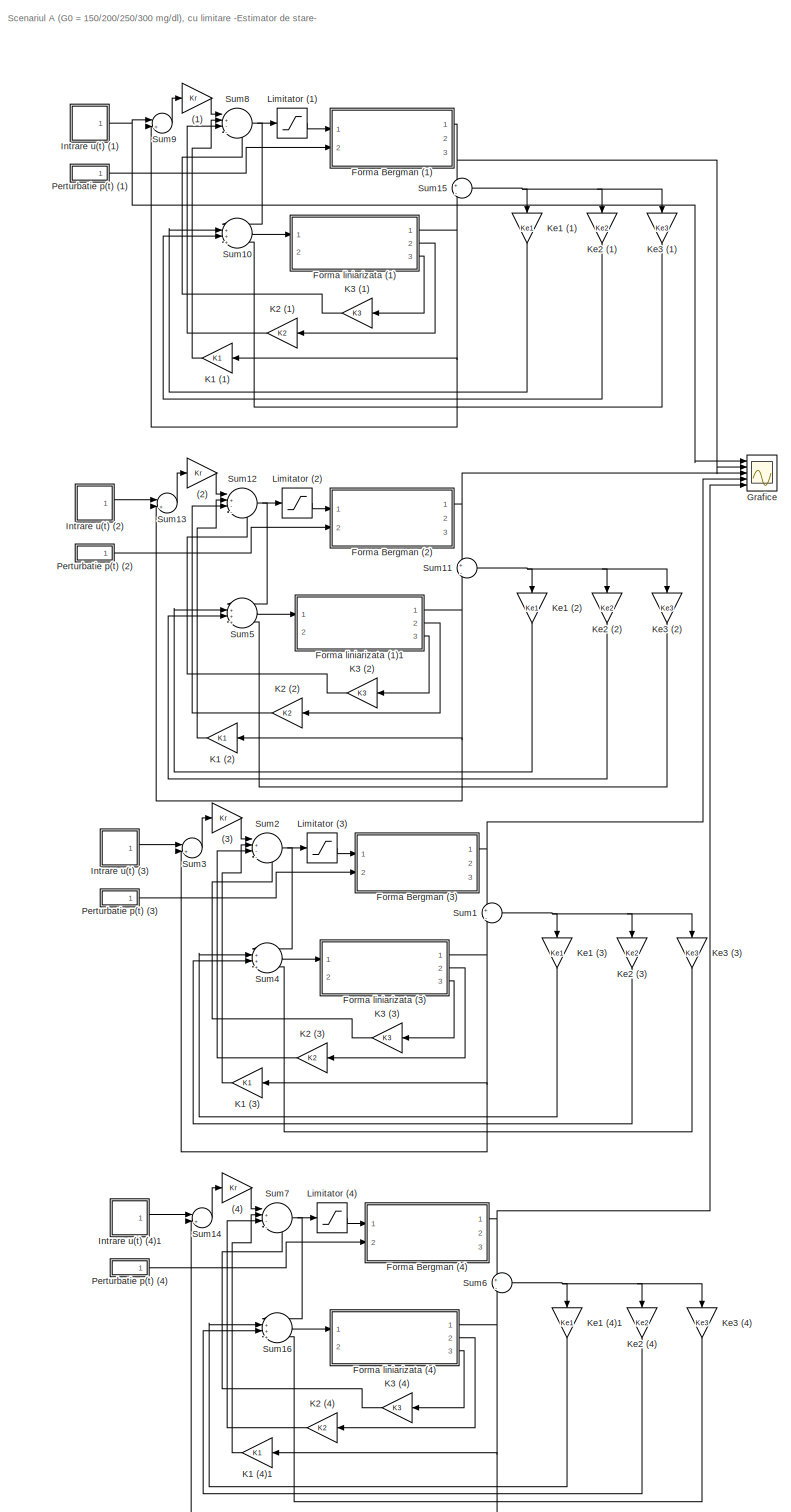
[diagram: root canvas - part 1/1, most of the canvas]
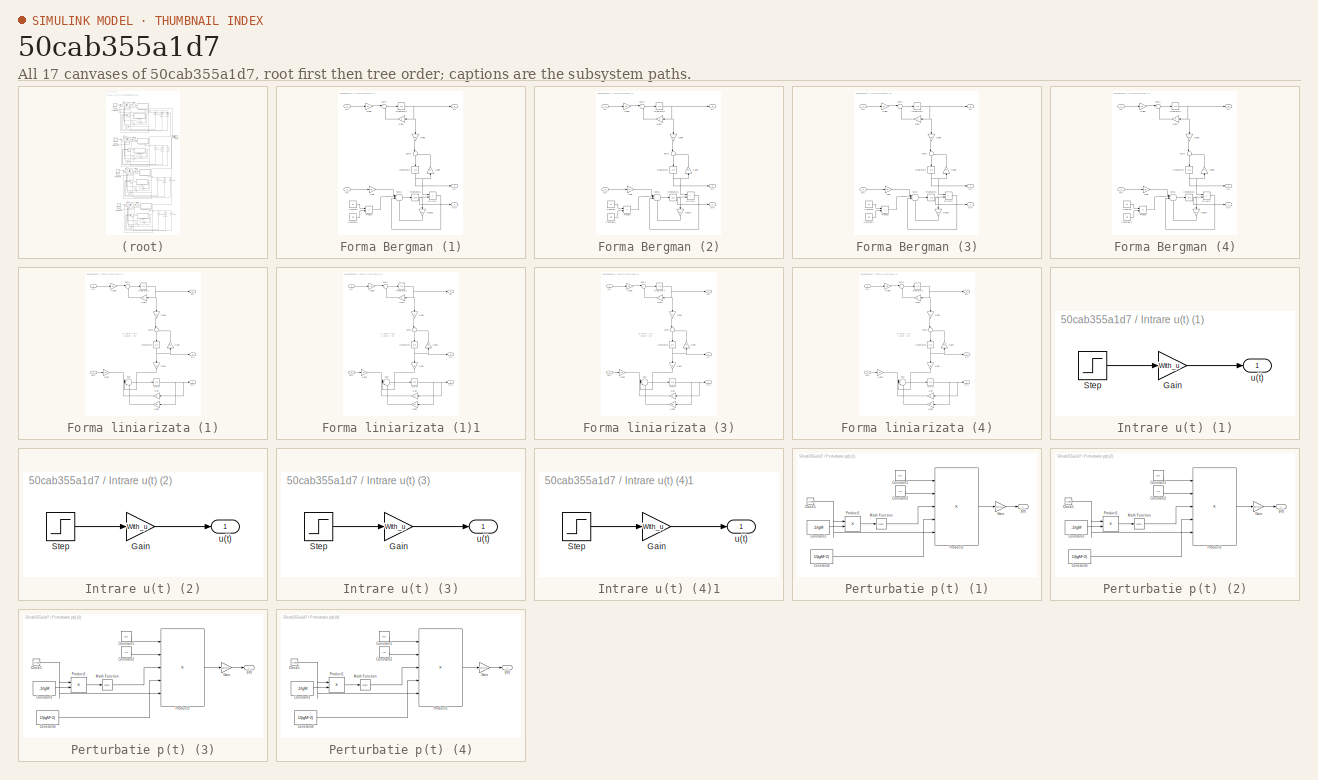
[diagram: thumbnail index - all 17 canvases of the model, root first then tree order]
MODEL slx_50cab355a1d7
KIND model
CONFIG AbsTol = auto
CONFIG EnableMultiTasking = off
CONFIG FixedStep = auto
CONFIG MaxStep = auto
CONFIG MinStep = auto
CONFIG RelTol = 1e-3
CONFIG SampleTimeConstraint = Unconstrained
CONFIG Solver = VariableStepAuto
CONFIG SolverName = VariableStepAuto
CONFIG StartTime = 0.0
CONFIG StopTime = 500
BLOCK [Gain] (1)
  Gain = Kr
BLOCK [Gain] (2)
  Gain = Kr
BLOCK [Gain] (3)
  Gain = Kr
BLOCK [Gain] (4)
  Gain = Kr
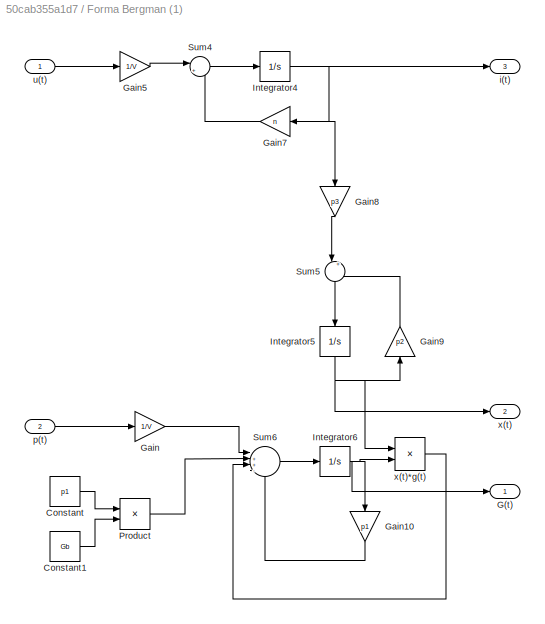
BLOCK [SubSystem] Forma Bergman (1)
  Ports = [2, 3]
BLOCK [Constant] Forma Bergman (1)/Constant
  Value = p1
BLOCK [Constant] Forma Bergman (1)/Constant1
  Value = Gb
BLOCK [Outport] Forma Bergman (1)/G(t)
BLOCK [Gain] Forma Bergman (1)/Gain
  Gain = 1/V
BLOCK [Gain] Forma Bergman (1)/Gain10
  Gain = p1
  NameLocation = left
BLOCK [Gain] Forma Bergman (1)/Gain5
  Gain = 1/V
BLOCK [Gain] Forma Bergman (1)/Gain7
  Gain = n
  NameLocation = top
BLOCK [Gain] Forma Bergman (1)/Gain8
  Gain = p3
  NameLocation = left
BLOCK [Gain] Forma Bergman (1)/Gain9
  Gain = p2
  NameLocation = right
BLOCK [Integrator] Forma Bergman (1)/Integrator4
  Ports = [1, 1]
BLOCK [Integrator] Forma Bergman (1)/Integrator5
  NameLocation = left
  Ports = [1, 1]
BLOCK [Integrator] Forma Bergman (1)/Integrator6
  InitialCondition = G0
  Ports = [1, 1]
BLOCK [Product] Forma Bergman (1)/Product
  Ports = [2, 1]
BLOCK [Sum] Forma Bergman (1)/Sum4
  Inputs = |+-
  Ports = [2, 1]
BLOCK [Sum] Forma Bergman (1)/Sum5
  Inputs = |+-
  NameLocation = left
  Ports = [2, 1]
BLOCK [Sum] Forma Bergman (1)/Sum6
  Inputs = |++--
  Ports = [4, 1]
BLOCK [Outport] Forma Bergman (1)/i(t)
  Port = 3
BLOCK [Inport] Forma Bergman (1)/p(t)
  Port = 2
BLOCK [Inport] Forma Bergman (1)/u(t)
BLOCK [Outport] Forma Bergman (1)/x(t)
  Port = 2
BLOCK [Product] Forma Bergman (1)/x(t)*g(t)
  Ports = [2, 1]
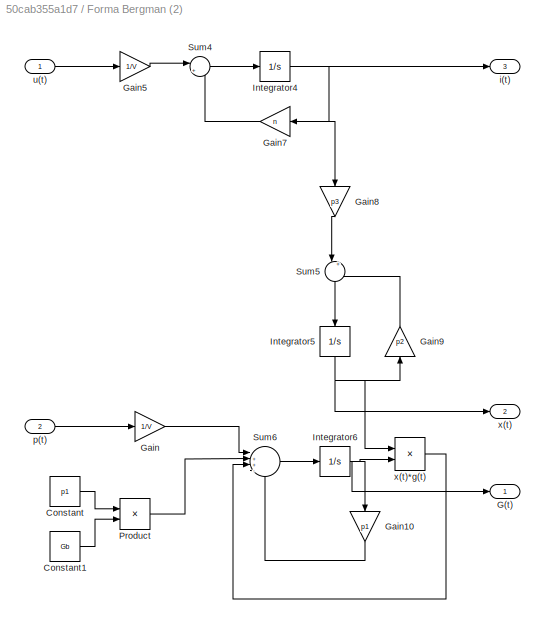
BLOCK [SubSystem] Forma Bergman (2)
  Ports = [2, 3]
BLOCK [Constant] Forma Bergman (2)/Constant
  Value = p1
BLOCK [Constant] Forma Bergman (2)/Constant1
  Value = Gb
BLOCK [Outport] Forma Bergman (2)/G(t)
BLOCK [Gain] Forma Bergman (2)/Gain
  Gain = 1/V
BLOCK [Gain] Forma Bergman (2)/Gain10
  Gain = p1
  NameLocation = left
BLOCK [Gain] Forma Bergman (2)/Gain5
  Gain = 1/V
BLOCK [Gain] Forma Bergman (2)/Gain7
  Gain = n
  NameLocation = top
BLOCK [Gain] Forma Bergman (2)/Gain8
  Gain = p3
  NameLocation = left
BLOCK [Gain] Forma Bergman (2)/Gain9
  Gain = p2
  NameLocation = right
BLOCK [Integrator] Forma Bergman (2)/Integrator4
  Ports = [1, 1]
BLOCK [Integrator] Forma Bergman (2)/Integrator5
  NameLocation = left
  Ports = [1, 1]
BLOCK [Integrator] Forma Bergman (2)/Integrator6
  InitialCondition = G0
  Ports = [1, 1]
BLOCK [Product] Forma Bergman (2)/Product
  Ports = [2, 1]
BLOCK [Sum] Forma Bergman (2)/Sum4
  Inputs = |+-
  Ports = [2, 1]
BLOCK [Sum] Forma Bergman (2)/Sum5
  Inputs = |+-
  NameLocation = left
  Ports = [2, 1]
BLOCK [Sum] Forma Bergman (2)/Sum6
  Inputs = |++--
  Ports = [4, 1]
BLOCK [Outport] Forma Bergman (2)/i(t)
  Port = 3
BLOCK [Inport] Forma Bergman (2)/p(t)
  Port = 2
BLOCK [Inport] Forma Bergman (2)/u(t)
BLOCK [Outport] Forma Bergman (2)/x(t)
  Port = 2
BLOCK [Product] Forma Bergman (2)/x(t)*g(t)
  Ports = [2, 1]
BLOCK [SubSystem] Forma Bergman (3)
  Ports = [2, 3]
BLOCK [Constant] Forma Bergman (3)/Constant
  Value = p1
BLOCK [Constant] Forma Bergman (3)/Constant1
  Value = Gb
BLOCK [Outport] Forma Bergman (3)/G(t)
BLOCK [Gain] Forma Bergman (3)/Gain
  Gain = 1/V
BLOCK [Gain] Forma Bergman (3)/Gain10
  Gain = p1
  NameLocation = left
BLOCK [Gain] Forma Bergman (3)/Gain5
  Gain = 1/V
BLOCK [Gain] Forma Bergman (3)/Gain7
  Gain = n
  NameLocation = top
BLOCK [Gain] Forma Bergman (3)/Gain8
  Gain = p3
  NameLocation = left
BLOCK [Gain] Forma Bergman (3)/Gain9
  Gain = p2
  NameLocation = right
BLOCK [Integrator] Forma Bergman (3)/Integrator4
  Ports = [1, 1]
BLOCK [Integrator] Forma Bergman (3)/Integrator5
  NameLocation = left
  Ports = [1, 1]
BLOCK [Integrator] Forma Bergman (3)/Integrator6
  InitialCondition = G0
  Ports = [1, 1]
BLOCK [Product] Forma Bergman (3)/Product
  Ports = [2, 1]
BLOCK [Sum] Forma Bergman (3)/Sum4
  Inputs = |+-
  Ports = [2, 1]
BLOCK [Sum] Forma Bergman (3)/Sum5
  Inputs = |+-
  NameLocation = left
  Ports = [2, 1]
BLOCK [Sum] Forma Bergman (3)/Sum6
  Inputs = |++--
  Ports = [4, 1]
BLOCK [Outport] Forma Bergman (3)/i(t)
  Port = 3
BLOCK [Inport] Forma Bergman (3)/p(t)
  Port = 2
BLOCK [Inport] Forma Bergman (3)/u(t)
BLOCK [Outport] Forma Bergman (3)/x(t)
  Port = 2
BLOCK [Product] Forma Bergman (3)/x(t)*g(t)
  Ports = [2, 1]
BLOCK [SubSystem] Forma Bergman (4)
  Ports = [2, 3]
BLOCK [Constant] Forma Bergman (4)/Constant
  Value = p1
BLOCK [Constant] Forma Bergman (4)/Constant1
  Value = Gb
BLOCK [Outport] Forma Bergman (4)/G(t)
BLOCK [Gain] Forma Bergman (4)/Gain
  Gain = 1/V
BLOCK [Gain] Forma Bergman (4)/Gain10
  Gain = p1
  NameLocation = left
BLOCK [Gain] Forma Bergman (4)/Gain5
  Gain = 1/V
BLOCK [Gain] Forma Bergman (4)/Gain7
  Gain = n
  NameLocation = top
BLOCK [Gain] Forma Bergman (4)/Gain8
  Gain = p3
  NameLocation = left
BLOCK [Gain] Forma Bergman (4)/Gain9
  Gain = p2
  NameLocation = right
BLOCK [Integrator] Forma Bergman (4)/Integrator4
  Ports = [1, 1]
BLOCK [Integrator] Forma Bergman (4)/Integrator5
  NameLocation = left
  Ports = [1, 1]
BLOCK [Integrator] Forma Bergman (4)/Integrator6
  InitialCondition = G0
  Ports = [1, 1]
BLOCK [Product] Forma Bergman (4)/Product
  Ports = [2, 1]
BLOCK [Sum] Forma Bergman (4)/Sum4
  Inputs = |+-
  Ports = [2, 1]
BLOCK [Sum] Forma Bergman (4)/Sum5
  Inputs = |+-
  NameLocation = left
  Ports = [2, 1]
BLOCK [Sum] Forma Bergman (4)/Sum6
  Inputs = |++--
  Ports = [4, 1]
BLOCK [Outport] Forma Bergman (4)/i(t)
  Port = 3
BLOCK [Inport] Forma Bergman (4)/p(t)
  Port = 2
BLOCK [Inport] Forma Bergman (4)/u(t)
BLOCK [Outport] Forma Bergman (4)/x(t)
  Port = 2
BLOCK [Product] Forma Bergman (4)/x(t)*g(t)
  Ports = [2, 1]
BLOCK [SubSystem] Forma liniarizata (1)
  Ports = [2, 3]
BLOCK [Outport] Forma liniarizata (1)/G(t)
BLOCK [Gain] Forma liniarizata (1)/Gain
  Gain = p1
  NameLocation = top
BLOCK [Gain] Forma liniarizata (1)/Gain1
  Gain = Gb
  NameLocation = left
BLOCK [Gain] Forma liniarizata (1)/Gain2
  Gain = Xb
  NameLocation = top
BLOCK [Gain] Forma liniarizata (1)/Gain3
  Gain = 1/V
BLOCK [Gain] Forma liniarizata (1)/Gain5
  Gain = 1/V
BLOCK [Gain] Forma liniarizata (1)/Gain7
  Gain = n
  NameLocation = top
BLOCK [Gain] Forma liniarizata (1)/Gain8
  Gain = p3
  NameLocation = left
BLOCK [Gain] Forma liniarizata (1)/Gain9
  Gain = p2
  NameLocation = right
BLOCK [Integrator] Forma liniarizata (1)/Gb!=0
  InitialCondition = G0
  Ports = [1, 1]
BLOCK [Integrator] Forma liniarizata (1)/Integrator4
  Ports = [1, 1]
BLOCK [Integrator] Forma liniarizata (1)/Integrator5
  NameLocation = left
  Ports = [1, 1]
BLOCK [Sum] Forma liniarizata (1)/Sum
  Inputs = |+---
  Ports = [4, 1]
BLOCK [Sum] Forma liniarizata (1)/Sum4
  Inputs = |+-
  Ports = [2, 1]
BLOCK [Sum] Forma liniarizata (1)/Sum5
  Inputs = |+-
  NameLocation = left
  Ports = [2, 1]
BLOCK [Outport] Forma liniarizata (1)/i(t)
  Port = 3
BLOCK [Inport] Forma liniarizata (1)/p(t)
  Port = 2
BLOCK [Inport] Forma liniarizata (1)/u(t)
BLOCK [Outport] Forma liniarizata (1)/x(t)
  Port = 2
BLOCK [SubSystem] Forma liniarizata (1)1
  Ports = [2, 3]
BLOCK [Outport] Forma liniarizata (1)1/G(t)
BLOCK [Gain] Forma liniarizata (1)1/Gain
  Gain = p1
  NameLocation = top
BLOCK [Gain] Forma liniarizata (1)1/Gain1
  Gain = Gb
  NameLocation = left
BLOCK [Gain] Forma liniarizata (1)1/Gain2
  Gain = Xb
  NameLocation = top
BLOCK [Gain] Forma liniarizata (1)1/Gain3
  Gain = 1/V
BLOCK [Gain] Forma liniarizata (1)1/Gain5
  Gain = 1/V
BLOCK [Gain] Forma liniarizata (1)1/Gain7
  Gain = n
  NameLocation = top
BLOCK [Gain] Forma liniarizata (1)1/Gain8
  Gain = p3
  NameLocation = left
BLOCK [Gain] Forma liniarizata (1)1/Gain9
  Gain = p2
  NameLocation = right
BLOCK [Integrator] Forma liniarizata (1)1/Gb!=0
  InitialCondition = G0
  Ports = [1, 1]
BLOCK [Integrator] Forma liniarizata (1)1/Integrator4
  Ports = [1, 1]
BLOCK [Integrator] Forma liniarizata (1)1/Integrator5
  NameLocation = left
  Ports = [1, 1]
BLOCK [Sum] Forma liniarizata (1)1/Sum
  Inputs = |+---
  Ports = [4, 1]
BLOCK [Sum] Forma liniarizata (1)1/Sum4
  Inputs = |+-
  Ports = [2, 1]
BLOCK [Sum] Forma liniarizata (1)1/Sum5
  Inputs = |+-
  NameLocation = left
  Ports = [2, 1]
BLOCK [Outport] Forma liniarizata (1)1/i(t)
  Port = 3
BLOCK [Inport] Forma liniarizata (1)1/p(t)
  Port = 2
BLOCK [Inport] Forma liniarizata (1)1/u(t)
BLOCK [Outport] Forma liniarizata (1)1/x(t)
  Port = 2
BLOCK [SubSystem] Forma liniarizata (3)
  Ports = [2, 3]
BLOCK [Outport] Forma liniarizata (3)/G(t)
BLOCK [Gain] Forma liniarizata (3)/Gain
  Gain = p1
  NameLocation = top
BLOCK [Gain] Forma liniarizata (3)/Gain1
  Gain = Gb
  NameLocation = left
BLOCK [Gain] Forma liniarizata (3)/Gain2
  Gain = Xb
  NameLocation = top
BLOCK [Gain] Forma liniarizata (3)/Gain3
  Gain = 1/V
BLOCK [Gain] Forma liniarizata (3)/Gain5
  Gain = 1/V
BLOCK [Gain] Forma liniarizata (3)/Gain7
  Gain = n
  NameLocation = top
BLOCK [Gain] Forma liniarizata (3)/Gain8
  Gain = p3
  NameLocation = left
BLOCK [Gain] Forma liniarizata (3)/Gain9
  Gain = p2
  NameLocation = right
BLOCK [Integrator] Forma liniarizata (3)/Gb!=0
  InitialCondition = G0
  Ports = [1, 1]
BLOCK [Integrator] Forma liniarizata (3)/Integrator4
  Ports = [1, 1]
BLOCK [Integrator] Forma liniarizata (3)/Integrator5
  NameLocation = left
  Ports = [1, 1]
BLOCK [Sum] Forma liniarizata (3)/Sum
  Inputs = |+---
  Ports = [4, 1]
BLOCK [Sum] Forma liniarizata (3)/Sum4
  Inputs = |+-
  Ports = [2, 1]
BLOCK [Sum] Forma liniarizata (3)/Sum5
  Inputs = |+-
  NameLocation = left
  Ports = [2, 1]
BLOCK [Outport] Forma liniarizata (3)/i(t)
  Port = 3
BLOCK [Inport] Forma liniarizata (3)/p(t)
  Port = 2
BLOCK [Inport] Forma liniarizata (3)/u(t)
BLOCK [Outport] Forma liniarizata (3)/x(t)
  Port = 2
BLOCK [SubSystem] Forma liniarizata (4)
  Ports = [2, 3]
BLOCK [Outport] Forma liniarizata (4)/G(t)
BLOCK [Gain] Forma liniarizata (4)/Gain
  Gain = p1
  NameLocation = top
BLOCK [Gain] Forma liniarizata (4)/Gain1
  Gain = Gb
  NameLocation = left
BLOCK [Gain] Forma liniarizata (4)/Gain2
  Gain = Xb
  NameLocation = top
BLOCK [Gain] Forma liniarizata (4)/Gain3
  Gain = 1/V
BLOCK [Gain] Forma liniarizata (4)/Gain5
  Gain = 1/V
BLOCK [Gain] Forma liniarizata (4)/Gain7
  Gain = n
  NameLocation = top
BLOCK [Gain] Forma liniarizata (4)/Gain8
  Gain = p3
  NameLocation = left
BLOCK [Gain] Forma liniarizata (4)/Gain9
  Gain = p2
  NameLocation = right
BLOCK [Integrator] Forma liniarizata (4)/Gb!=0
  InitialCondition = G0
  Ports = [1, 1]
BLOCK [Integrator] Forma liniarizata (4)/Integrator4
  Ports = [1, 1]
BLOCK [Integrator] Forma liniarizata (4)/Integrator5
  NameLocation = left
  Ports = [1, 1]
BLOCK [Sum] Forma liniarizata (4)/Sum
  Inputs = |+---
  Ports = [4, 1]
BLOCK [Sum] Forma liniarizata (4)/Sum4
  Inputs = |+-
  Ports = [2, 1]
BLOCK [Sum] Forma liniarizata (4)/Sum5
  Inputs = |+-
  NameLocation = left
  Ports = [2, 1]
BLOCK [Outport] Forma liniarizata (4)/i(t)
  Port = 3
BLOCK [Inport] Forma liniarizata (4)/p(t)
  Port = 2
BLOCK [Inport] Forma liniarizata (4)/u(t)
BLOCK [Outport] Forma liniarizata (4)/x(t)
  Port = 2
BLOCK [Scope] Grafice
  Floating = off
  NumInputPorts = 5
  Ports = [5]
  ScopeSpecificationString = Simulink.scopes.TimeScopeBlockCfg('CurrentConfiguration', extmgr.ConfigurationSet(extmgr.Configuration('Core','General UI',true),extmgr.Configuration('Core','Source UI',true),extmgr.Configuration('Sources','WiredSimulink',true),extmgr.Configuration('Visuals','Time Domain',true,'SerializedDisplays',{struct('MinYLimReal','-100','MaxYLimReal','500','YLabelReal','','MinYLimMag','0.00000','MaxYLimMag',...<+1574ch>
BLOCK [SubSystem] Intrare u(t) (1)
  Ports = [0, 1]
BLOCK [Gain] Intrare u(t) (1)/Gain
  Gain = With_u
BLOCK [Step] Intrare u(t) (1)/Step
  After = Gref
  SampleTime = 0
  Time = 0
BLOCK [Outport] Intrare u(t) (1)/u(t)
BLOCK [SubSystem] Intrare u(t) (2)
  Ports = [0, 1]
BLOCK [Gain] Intrare u(t) (2)/Gain
  Gain = With_u
BLOCK [Step] Intrare u(t) (2)/Step
  After = Gref
  SampleTime = 0
  Time = 0
BLOCK [Outport] Intrare u(t) (2)/u(t)
BLOCK [SubSystem] Intrare u(t) (3)
  Ports = [0, 1]
BLOCK [Gain] Intrare u(t) (3)/Gain
  Gain = With_u
BLOCK [Step] Intrare u(t) (3)/Step
  After = Gref
  SampleTime = 0
  Time = 0
BLOCK [Outport] Intrare u(t) (3)/u(t)
BLOCK [SubSystem] Intrare u(t) (4)1
  Ports = [0, 1]
BLOCK [Gain] Intrare u(t) (4)1/Gain
  Gain = With_u
BLOCK [Step] Intrare u(t) (4)1/Step
  After = Gref
  SampleTime = 0
  Time = 0
BLOCK [Outport] Intrare u(t) (4)1/u(t)
BLOCK [Gain] K1 (1)
  Gain = K1
  NameLocation = top
BLOCK [Gain] K1 (2)
  Gain = K1
  NameLocation = top
BLOCK [Gain] K1 (3)
  Gain = K1
  NameLocation = top
BLOCK [Gain] K1 (4)1
  Gain = K1
  NameLocation = top
BLOCK [Gain] K2 (1)
  Gain = K2
  NameLocation = top
BLOCK [Gain] K2 (2)
  Gain = K2
  NameLocation = top
BLOCK [Gain] K2 (3)
  Gain = K2
  NameLocation = top
BLOCK [Gain] K2 (4)
  Gain = K2
  NameLocation = top
BLOCK [Gain] K3 (1)
  Gain = K3
  NameLocation = top
BLOCK [Gain] K3 (2)
  Gain = K3
  NameLocation = top
BLOCK [Gain] K3 (3)
  Gain = K3
  NameLocation = top
BLOCK [Gain] K3 (4)
  Gain = K3
  NameLocation = top
BLOCK [Gain] Ke1 (1)
  Gain = Ke1
  NameLocation = left
BLOCK [Gain] Ke1 (2)
  Gain = Ke1
  NameLocation = left
BLOCK [Gain] Ke1 (3)
  Gain = Ke1
  NameLocation = left
BLOCK [Gain] Ke1 (4)1
  Gain = Ke1
  NameLocation = left
BLOCK [Gain] Ke2 (1)
  Gain = Ke2
  NameLocation = left
BLOCK [Gain] Ke2 (2)
  Gain = Ke2
  NameLocation = left
BLOCK [Gain] Ke2 (3)
  Gain = Ke2
  NameLocation = left
BLOCK [Gain] Ke2 (4)
  Gain = Ke2
  NameLocation = left
BLOCK [Gain] Ke3 (1)
  Gain = Ke3
  NameLocation = left
BLOCK [Gain] Ke3 (2)
  Gain = Ke3
  NameLocation = left
BLOCK [Gain] Ke3 (3)
  Gain = Ke3
  NameLocation = left
BLOCK [Gain] Ke3 (4)
  Gain = Ke3
  NameLocation = left
BLOCK [Saturate] Limitator (1)
  LowerLimit = 0
  UpperLimit = 500
BLOCK [Saturate] Limitator (2)
  LowerLimit = 0
  UpperLimit = 500
BLOCK [Saturate] Limitator (3)
  LowerLimit = 0
  UpperLimit = 500
BLOCK [Saturate] Limitator (4)
  LowerLimit = 0
  UpperLimit = 500
BLOCK [SubSystem] Perturbatie p(t) (1)
  Ports = [0, 1]
BLOCK [Clock] Perturbatie p(t) (1)/Clock1
BLOCK [Constant] Perturbatie p(t) (1)/Constant1
  Value = Dg
BLOCK [Constant] Perturbatie p(t) (1)/Constant2
  Value = Ag
BLOCK [Constant] Perturbatie p(t) (1)/Constant3
  Value = -1/tgM
BLOCK [Constant] Perturbatie p(t) (1)/Constant4
  Value = 1/(tgM^2)
BLOCK [Gain] Perturbatie p(t) (1)/Gain
  Gain = With_p
BLOCK [Math] Perturbatie p(t) (1)/Math Function
  Ports = [1, 1]
  SignedPower = on
BLOCK [Product] Perturbatie p(t) (1)/Product1
  Ports = [2, 1]
BLOCK [Product] Perturbatie p(t) (1)/Product3
  Inputs = 5
  Ports = [5, 1]
BLOCK [Outport] Perturbatie p(t) (1)/p(t)
BLOCK [SubSystem] Perturbatie p(t) (2)
  Ports = [0, 1]
BLOCK [Clock] Perturbatie p(t) (2)/Clock1
BLOCK [Constant] Perturbatie p(t) (2)/Constant1
  Value = Dg
BLOCK [Constant] Perturbatie p(t) (2)/Constant2
  Value = Ag
BLOCK [Constant] Perturbatie p(t) (2)/Constant3
  Value = -1/tgM
BLOCK [Constant] Perturbatie p(t) (2)/Constant4
  Value = 1/(tgM^2)
BLOCK [Gain] Perturbatie p(t) (2)/Gain
  Gain = With_p
BLOCK [Math] Perturbatie p(t) (2)/Math Function
  Ports = [1, 1]
  SignedPower = on
BLOCK [Product] Perturbatie p(t) (2)/Product1
  Ports = [2, 1]
BLOCK [Product] Perturbatie p(t) (2)/Product3
  Inputs = 5
  Ports = [5, 1]
BLOCK [Outport] Perturbatie p(t) (2)/p(t)
BLOCK [SubSystem] Perturbatie p(t) (3)
  Ports = [0, 1]
BLOCK [Clock] Perturbatie p(t) (3)/Clock1
BLOCK [Constant] Perturbatie p(t) (3)/Constant1
  Value = Dg
BLOCK [Constant] Perturbatie p(t) (3)/Constant2
  Value = Ag
BLOCK [Constant] Perturbatie p(t) (3)/Constant3
  Value = -1/tgM
BLOCK [Constant] Perturbatie p(t) (3)/Constant4
  Value = 1/(tgM^2)
BLOCK [Gain] Perturbatie p(t) (3)/Gain
  Gain = With_p
BLOCK [Math] Perturbatie p(t) (3)/Math Function
  Ports = [1, 1]
  SignedPower = on
BLOCK [Product] Perturbatie p(t) (3)/Product1
  Ports = [2, 1]
BLOCK [Product] Perturbatie p(t) (3)/Product3
  Inputs = 5
  Ports = [5, 1]
BLOCK [Outport] Perturbatie p(t) (3)/p(t)
BLOCK [SubSystem] Perturbatie p(t) (4)
  Ports = [0, 1]
BLOCK [Clock] Perturbatie p(t) (4)/Clock1
BLOCK [Constant] Perturbatie p(t) (4)/Constant1
  Value = Dg
BLOCK [Constant] Perturbatie p(t) (4)/Constant2
  Value = Ag
BLOCK [Constant] Perturbatie p(t) (4)/Constant3
  Value = -1/tgM
BLOCK [Constant] Perturbatie p(t) (4)/Constant4
  Value = 1/(tgM^2)
BLOCK [Gain] Perturbatie p(t) (4)/Gain
  Gain = With_p
BLOCK [Math] Perturbatie p(t) (4)/Math Function
  Ports = [1, 1]
  SignedPower = on
BLOCK [Product] Perturbatie p(t) (4)/Product1
  Ports = [2, 1]
BLOCK [Product] Perturbatie p(t) (4)/Product3
  Inputs = 5
  Ports = [5, 1]
BLOCK [Outport] Perturbatie p(t) (4)/p(t)
BLOCK [Sum] Sum1
  Inputs = +|-
  Ports = [2, 1]
BLOCK [Sum] Sum10
  Inputs = |++++
  Ports = [4, 1]
BLOCK [Sum] Sum11
  Inputs = +|-
  Ports = [2, 1]
BLOCK [Sum] Sum12
  Inputs = |+---
  Ports = [4, 1]
BLOCK [Sum] Sum13
  Inputs = |+-
  Ports = [2, 1]
BLOCK [Sum] Sum14
  Inputs = |+-
  Ports = [2, 1]
BLOCK [Sum] Sum15
  Inputs = +|-
  Ports = [2, 1]
BLOCK [Sum] Sum16
  Inputs = |++++
  Ports = [4, 1]
BLOCK [Sum] Sum2
  Inputs = |+---
  Ports = [4, 1]
BLOCK [Sum] Sum3
  Inputs = |+-
  Ports = [2, 1]
BLOCK [Sum] Sum4
  Inputs = |++++
  Ports = [4, 1]
BLOCK [Sum] Sum5
  Inputs = |++++
  Ports = [4, 1]
BLOCK [Sum] Sum6
  Inputs = +|-
  Ports = [2, 1]
BLOCK [Sum] Sum7
  Inputs = |+---
  Ports = [4, 1]
BLOCK [Sum] Sum8
  Inputs = |+---
  Ports = [4, 1]
BLOCK [Sum] Sum9
  Inputs = |+-
  Ports = [2, 1]
ANNOTATION (root): Scenariul A (G0 = 150/200/250/300 mg/dl), cu limitare -Estimator de stare-
ANNOTATION Forma liniarizata (1): G barat = Gb X barat = Xb
ANNOTATION Forma liniarizata (1)1: G barat = Gb X barat = Xb
ANNOTATION Forma liniarizata (3): G barat = Gb X barat = Xb
ANNOTATION Forma liniarizata (4): G barat = Gb X barat = Xb
LINE (1):1 -> Sum8:1
LINE (2):1 -> Sum12:1
LINE (3):1 -> Sum2:1
LINE (4):1 -> Sum7:1
LINE Forma Bergman (1)/Constant1:1 -> Forma Bergman (1)/Product:2
LINE Forma Bergman (1)/Constant:1 -> Forma Bergman (1)/Product:1
LINE Forma Bergman (1)/Gain10:1 -> Forma Bergman (1)/Sum6:4
LINE Forma Bergman (1)/Gain5:1 -> Forma Bergman (1)/Sum4:1
LINE Forma Bergman (1)/Gain7:1 -> Forma Bergman (1)/Sum4:2
LINE Forma Bergman (1)/Gain8:1 -> Forma Bergman (1)/Sum5:1
LINE Forma Bergman (1)/Gain9:1 -> Forma Bergman (1)/Sum5:2
LINE Forma Bergman (1)/Gain:1 -> Forma Bergman (1)/Sum6:1
NET Forma Bergman (1)/Integrator4:1 -> Forma Bergman (1)/Gain7:1, Forma Bergman (1)/Gain8:1, Forma Bergman (1)/i(t):1
NET Forma Bergman (1)/Integrator5:1 -> Forma Bergman (1)/Gain9:1, Forma Bergman (1)/x(t)*g(t):1, Forma Bergman (1)/x(t):1
NET Forma Bergman (1)/Integrator6:1 -> Forma Bergman (1)/G(t):1, Forma Bergman (1)/Gain10:1, Forma Bergman (1)/x(t)*g(t):2
LINE Forma Bergman (1)/Product:1 -> Forma Bergman (1)/Sum6:2
LINE Forma Bergman (1)/Sum4:1 -> Forma Bergman (1)/Integrator4:1
LINE Forma Bergman (1)/Sum5:1 -> Forma Bergman (1)/Integrator5:1
LINE Forma Bergman (1)/Sum6:1 -> Forma Bergman (1)/Integrator6:1
LINE Forma Bergman (1)/p(t):1 -> Forma Bergman (1)/Gain:1
LINE Forma Bergman (1)/u(t):1 -> Forma Bergman (1)/Gain5:1
LINE Forma Bergman (1)/x(t)*g(t):1 -> Forma Bergman (1)/Sum6:3
NET Forma Bergman (1):1 -> Grafice:2, Sum15:1
LINE Forma Bergman (2)/Constant1:1 -> Forma Bergman (2)/Product:2
LINE Forma Bergman (2)/Constant:1 -> Forma Bergman (2)/Product:1
LINE Forma Bergman (2)/Gain10:1 -> Forma Bergman (2)/Sum6:4
LINE Forma Bergman (2)/Gain5:1 -> Forma Bergman (2)/Sum4:1
LINE Forma Bergman (2)/Gain7:1 -> Forma Bergman (2)/Sum4:2
LINE Forma Bergman (2)/Gain8:1 -> Forma Bergman (2)/Sum5:1
LINE Forma Bergman (2)/Gain9:1 -> Forma Bergman (2)/Sum5:2
LINE Forma Bergman (2)/Gain:1 -> Forma Bergman (2)/Sum6:1
NET Forma Bergman (2)/Integrator4:1 -> Forma Bergman (2)/Gain7:1, Forma Bergman (2)/Gain8:1, Forma Bergman (2)/i(t):1
NET Forma Bergman (2)/Integrator5:1 -> Forma Bergman (2)/Gain9:1, Forma Bergman (2)/x(t)*g(t):1, Forma Bergman (2)/x(t):1
NET Forma Bergman (2)/Integrator6:1 -> Forma Bergman (2)/G(t):1, Forma Bergman (2)/Gain10:1, Forma Bergman (2)/x(t)*g(t):2
LINE Forma Bergman (2)/Product:1 -> Forma Bergman (2)/Sum6:2
LINE Forma Bergman (2)/Sum4:1 -> Forma Bergman (2)/Integrator4:1
LINE Forma Bergman (2)/Sum5:1 -> Forma Bergman (2)/Integrator5:1
LINE Forma Bergman (2)/Sum6:1 -> Forma Bergman (2)/Integrator6:1
LINE Forma Bergman (2)/p(t):1 -> Forma Bergman (2)/Gain:1
LINE Forma Bergman (2)/u(t):1 -> Forma Bergman (2)/Gain5:1
LINE Forma Bergman (2)/x(t)*g(t):1 -> Forma Bergman (2)/Sum6:3
NET Forma Bergman (2):1 -> Grafice:3, Sum11:1
LINE Forma Bergman (3)/Constant1:1 -> Forma Bergman (3)/Product:2
LINE Forma Bergman (3)/Constant:1 -> Forma Bergman (3)/Product:1
LINE Forma Bergman (3)/Gain10:1 -> Forma Bergman (3)/Sum6:4
LINE Forma Bergman (3)/Gain5:1 -> Forma Bergman (3)/Sum4:1
LINE Forma Bergman (3)/Gain7:1 -> Forma Bergman (3)/Sum4:2
LINE Forma Bergman (3)/Gain8:1 -> Forma Bergman (3)/Sum5:1
LINE Forma Bergman (3)/Gain9:1 -> Forma Bergman (3)/Sum5:2
LINE Forma Bergman (3)/Gain:1 -> Forma Bergman (3)/Sum6:1
NET Forma Bergman (3)/Integrator4:1 -> Forma Bergman (3)/Gain7:1, Forma Bergman (3)/Gain8:1, Forma Bergman (3)/i(t):1
NET Forma Bergman (3)/Integrator5:1 -> Forma Bergman (3)/Gain9:1, Forma Bergman (3)/x(t)*g(t):1, Forma Bergman (3)/x(t):1
NET Forma Bergman (3)/Integrator6:1 -> Forma Bergman (3)/G(t):1, Forma Bergman (3)/Gain10:1, Forma Bergman (3)/x(t)*g(t):2
LINE Forma Bergman (3)/Product:1 -> Forma Bergman (3)/Sum6:2
LINE Forma Bergman (3)/Sum4:1 -> Forma Bergman (3)/Integrator4:1
LINE Forma Bergman (3)/Sum5:1 -> Forma Bergman (3)/Integrator5:1
LINE Forma Bergman (3)/Sum6:1 -> Forma Bergman (3)/Integrator6:1
LINE Forma Bergman (3)/p(t):1 -> Forma Bergman (3)/Gain:1
LINE Forma Bergman (3)/u(t):1 -> Forma Bergman (3)/Gain5:1
LINE Forma Bergman (3)/x(t)*g(t):1 -> Forma Bergman (3)/Sum6:3
NET Forma Bergman (3):1 -> Grafice:4, Sum1:1
LINE Forma Bergman (4)/Constant1:1 -> Forma Bergman (4)/Product:2
LINE Forma Bergman (4)/Constant:1 -> Forma Bergman (4)/Product:1
LINE Forma Bergman (4)/Gain10:1 -> Forma Bergman (4)/Sum6:4
LINE Forma Bergman (4)/Gain5:1 -> Forma Bergman (4)/Sum4:1
LINE Forma Bergman (4)/Gain7:1 -> Forma Bergman (4)/Sum4:2
LINE Forma Bergman (4)/Gain8:1 -> Forma Bergman (4)/Sum5:1
LINE Forma Bergman (4)/Gain9:1 -> Forma Bergman (4)/Sum5:2
LINE Forma Bergman (4)/Gain:1 -> Forma Bergman (4)/Sum6:1
NET Forma Bergman (4)/Integrator4:1 -> Forma Bergman (4)/Gain7:1, Forma Bergman (4)/Gain8:1, Forma Bergman (4)/i(t):1
NET Forma Bergman (4)/Integrator5:1 -> Forma Bergman (4)/Gain9:1, Forma Bergman (4)/x(t)*g(t):1, Forma Bergman (4)/x(t):1
NET Forma Bergman (4)/Integrator6:1 -> Forma Bergman (4)/G(t):1, Forma Bergman (4)/Gain10:1, Forma Bergman (4)/x(t)*g(t):2
LINE Forma Bergman (4)/Product:1 -> Forma Bergman (4)/Sum6:2
LINE Forma Bergman (4)/Sum4:1 -> Forma Bergman (4)/Integrator4:1
LINE Forma Bergman (4)/Sum5:1 -> Forma Bergman (4)/Integrator5:1
LINE Forma Bergman (4)/Sum6:1 -> Forma Bergman (4)/Integrator6:1
LINE Forma Bergman (4)/p(t):1 -> Forma Bergman (4)/Gain:1
LINE Forma Bergman (4)/u(t):1 -> Forma Bergman (4)/Gain5:1
LINE Forma Bergman (4)/x(t)*g(t):1 -> Forma Bergman (4)/Sum6:3
NET Forma Bergman (4):1 -> Grafice:5, Sum6:1
LINE Forma liniarizata (1)/Gain1:1 -> Forma liniarizata (1)/Sum:3
LINE Forma liniarizata (1)/Gain2:1 -> Forma liniarizata (1)/Sum:4
LINE Forma liniarizata (1)/Gain3:1 -> Forma liniarizata (1)/Sum:1
LINE Forma liniarizata (1)/Gain5:1 -> Forma liniarizata (1)/Sum4:1
LINE Forma liniarizata (1)/Gain7:1 -> Forma liniarizata (1)/Sum4:2
LINE Forma liniarizata (1)/Gain8:1 -> Forma liniarizata (1)/Sum5:1
LINE Forma liniarizata (1)/Gain9:1 -> Forma liniarizata (1)/Sum5:2
LINE Forma liniarizata (1)/Gain:1 -> Forma liniarizata (1)/Sum:2
NET Forma liniarizata (1)/Gb!=0:1 -> Forma liniarizata (1)/G(t):1, Forma liniarizata (1)/Gain2:1, Forma liniarizata (1)/Gain:1
NET Forma liniarizata (1)/Integrator4:1 -> Forma liniarizata (1)/Gain7:1, Forma liniarizata (1)/Gain8:1, Forma liniarizata (1)/i(t):1
NET Forma liniarizata (1)/Integrator5:1 -> Forma liniarizata (1)/Gain1:1, Forma liniarizata (1)/Gain9:1, Forma liniarizata (1)/x(t):1
LINE Forma liniarizata (1)/Sum4:1 -> Forma liniarizata (1)/Integrator4:1
LINE Forma liniarizata (1)/Sum5:1 -> Forma liniarizata (1)/Integrator5:1
LINE Forma liniarizata (1)/Sum:1 -> Forma liniarizata (1)/Gb!=0:1
LINE Forma liniarizata (1)/p(t):1 -> Forma liniarizata (1)/Gain3:1
LINE Forma liniarizata (1)/u(t):1 -> Forma liniarizata (1)/Gain5:1
LINE Forma liniarizata (1)1/Gain1:1 -> Forma liniarizata (1)1/Sum:3
LINE Forma liniarizata (1)1/Gain2:1 -> Forma liniarizata (1)1/Sum:4
LINE Forma liniarizata (1)1/Gain3:1 -> Forma liniarizata (1)1/Sum:1
LINE Forma liniarizata (1)1/Gain5:1 -> Forma liniarizata (1)1/Sum4:1
LINE Forma liniarizata (1)1/Gain7:1 -> Forma liniarizata (1)1/Sum4:2
LINE Forma liniarizata (1)1/Gain8:1 -> Forma liniarizata (1)1/Sum5:1
LINE Forma liniarizata (1)1/Gain9:1 -> Forma liniarizata (1)1/Sum5:2
LINE Forma liniarizata (1)1/Gain:1 -> Forma liniarizata (1)1/Sum:2
NET Forma liniarizata (1)1/Gb!=0:1 -> Forma liniarizata (1)1/G(t):1, Forma liniarizata (1)1/Gain2:1, Forma liniarizata (1)1/Gain:1
NET Forma liniarizata (1)1/Integrator4:1 -> Forma liniarizata (1)1/Gain7:1, Forma liniarizata (1)1/Gain8:1, Forma liniarizata (1)1/i(t):1
NET Forma liniarizata (1)1/Integrator5:1 -> Forma liniarizata (1)1/Gain1:1, Forma liniarizata (1)1/Gain9:1, Forma liniarizata (1)1/x(t):1
LINE Forma liniarizata (1)1/Sum4:1 -> Forma liniarizata (1)1/Integrator4:1
LINE Forma liniarizata (1)1/Sum5:1 -> Forma liniarizata (1)1/Integrator5:1
LINE Forma liniarizata (1)1/Sum:1 -> Forma liniarizata (1)1/Gb!=0:1
LINE Forma liniarizata (1)1/p(t):1 -> Forma liniarizata (1)1/Gain3:1
LINE Forma liniarizata (1)1/u(t):1 -> Forma liniarizata (1)1/Gain5:1
NET Forma liniarizata (1)1:1 -> K1 (2):1, Sum11:2, Sum13:2
LINE Forma liniarizata (1)1:2 -> K2 (2):1
LINE Forma liniarizata (1)1:3 -> K3 (2):1
NET Forma liniarizata (1):1 -> K1 (1):1, Sum15:2, Sum9:2
LINE Forma liniarizata (1):2 -> K2 (1):1
LINE Forma liniarizata (1):3 -> K3 (1):1
LINE Forma liniarizata (3)/Gain1:1 -> Forma liniarizata (3)/Sum:3
LINE Forma liniarizata (3)/Gain2:1 -> Forma liniarizata (3)/Sum:4
LINE Forma liniarizata (3)/Gain3:1 -> Forma liniarizata (3)/Sum:1
LINE Forma liniarizata (3)/Gain5:1 -> Forma liniarizata (3)/Sum4:1
LINE Forma liniarizata (3)/Gain7:1 -> Forma liniarizata (3)/Sum4:2
LINE Forma liniarizata (3)/Gain8:1 -> Forma liniarizata (3)/Sum5:1
LINE Forma liniarizata (3)/Gain9:1 -> Forma liniarizata (3)/Sum5:2
LINE Forma liniarizata (3)/Gain:1 -> Forma liniarizata (3)/Sum:2
NET Forma liniarizata (3)/Gb!=0:1 -> Forma liniarizata (3)/G(t):1, Forma liniarizata (3)/Gain2:1, Forma liniarizata (3)/Gain:1
NET Forma liniarizata (3)/Integrator4:1 -> Forma liniarizata (3)/Gain7:1, Forma liniarizata (3)/Gain8:1, Forma liniarizata (3)/i(t):1
NET Forma liniarizata (3)/Integrator5:1 -> Forma liniarizata (3)/Gain1:1, Forma liniarizata (3)/Gain9:1, Forma liniarizata (3)/x(t):1
LINE Forma liniarizata (3)/Sum4:1 -> Forma liniarizata (3)/Integrator4:1
LINE Forma liniarizata (3)/Sum5:1 -> Forma liniarizata (3)/Integrator5:1
LINE Forma liniarizata (3)/Sum:1 -> Forma liniarizata (3)/Gb!=0:1
LINE Forma liniarizata (3)/p(t):1 -> Forma liniarizata (3)/Gain3:1
LINE Forma liniarizata (3)/u(t):1 -> Forma liniarizata (3)/Gain5:1
NET Forma liniarizata (3):1 -> K1 (3):1, Sum1:2, Sum3:2
LINE Forma liniarizata (3):2 -> K2 (3):1
LINE Forma liniarizata (3):3 -> K3 (3):1
LINE Forma liniarizata (4)/Gain1:1 -> Forma liniarizata (4)/Sum:3
LINE Forma liniarizata (4)/Gain2:1 -> Forma liniarizata (4)/Sum:4
LINE Forma liniarizata (4)/Gain3:1 -> Forma liniarizata (4)/Sum:1
LINE Forma liniarizata (4)/Gain5:1 -> Forma liniarizata (4)/Sum4:1
LINE Forma liniarizata (4)/Gain7:1 -> Forma liniarizata (4)/Sum4:2
LINE Forma liniarizata (4)/Gain8:1 -> Forma liniarizata (4)/Sum5:1
LINE Forma liniarizata (4)/Gain9:1 -> Forma liniarizata (4)/Sum5:2
LINE Forma liniarizata (4)/Gain:1 -> Forma liniarizata (4)/Sum:2
NET Forma liniarizata (4)/Gb!=0:1 -> Forma liniarizata (4)/G(t):1, Forma liniarizata (4)/Gain2:1, Forma liniarizata (4)/Gain:1
NET Forma liniarizata (4)/Integrator4:1 -> Forma liniarizata (4)/Gain7:1, Forma liniarizata (4)/Gain8:1, Forma liniarizata (4)/i(t):1
NET Forma liniarizata (4)/Integrator5:1 -> Forma liniarizata (4)/Gain1:1, Forma liniarizata (4)/Gain9:1, Forma liniarizata (4)/x(t):1
LINE Forma liniarizata (4)/Sum4:1 -> Forma liniarizata (4)/Integrator4:1
LINE Forma liniarizata (4)/Sum5:1 -> Forma liniarizata (4)/Integrator5:1
LINE Forma liniarizata (4)/Sum:1 -> Forma liniarizata (4)/Gb!=0:1
LINE Forma liniarizata (4)/p(t):1 -> Forma liniarizata (4)/Gain3:1
LINE Forma liniarizata (4)/u(t):1 -> Forma liniarizata (4)/Gain5:1
NET Forma liniarizata (4):1 -> K1 (4)1:1, Sum14:2, Sum6:2
LINE Forma liniarizata (4):2 -> K2 (4):1
LINE Forma liniarizata (4):3 -> K3 (4):1
LINE Intrare u(t) (1)/Gain:1 -> Intrare u(t) (1)/u(t):1
LINE Intrare u(t) (1)/Step:1 -> Intrare u(t) (1)/Gain:1
NET Intrare u(t) (1):1 -> Grafice:1, Sum9:1
LINE Intrare u(t) (2)/Gain:1 -> Intrare u(t) (2)/u(t):1
LINE Intrare u(t) (2)/Step:1 -> Intrare u(t) (2)/Gain:1
LINE Intrare u(t) (2):1 -> Sum13:1
LINE Intrare u(t) (3)/Gain:1 -> Intrare u(t) (3)/u(t):1
LINE Intrare u(t) (3)/Step:1 -> Intrare u(t) (3)/Gain:1
LINE Intrare u(t) (3):1 -> Sum3:1
LINE Intrare u(t) (4)1/Gain:1 -> Intrare u(t) (4)1/u(t):1
LINE Intrare u(t) (4)1/Step:1 -> Intrare u(t) (4)1/Gain:1
LINE Intrare u(t) (4)1:1 -> Sum14:1
LINE K1 (1):1 -> Sum8:2
LINE K1 (2):1 -> Sum12:2
LINE K1 (3):1 -> Sum2:2
LINE K1 (4)1:1 -> Sum7:2
LINE K2 (1):1 -> Sum8:3
LINE K2 (2):1 -> Sum12:3
LINE K2 (3):1 -> Sum2:3
LINE K2 (4):1 -> Sum7:3
LINE K3 (1):1 -> Sum8:4
LINE K3 (2):1 -> Sum12:4
LINE K3 (3):1 -> Sum2:4
LINE K3 (4):1 -> Sum7:4
LINE Ke1 (1):1 -> Sum10:2
LINE Ke1 (2):1 -> Sum5:2
LINE Ke1 (3):1 -> Sum4:2
LINE Ke1 (4)1:1 -> Sum16:2
LINE Ke2 (1):1 -> Sum10:3
LINE Ke2 (2):1 -> Sum5:3
LINE Ke2 (3):1 -> Sum4:3
LINE Ke2 (4):1 -> Sum16:3
LINE Ke3 (1):1 -> Sum10:4
LINE Ke3 (2):1 -> Sum5:4
LINE Ke3 (3):1 -> Sum4:4
LINE Ke3 (4):1 -> Sum16:4
LINE Limitator (1):1 -> Forma Bergman (1):1
LINE Limitator (2):1 -> Forma Bergman (2):1
LINE Limitator (3):1 -> Forma Bergman (3):1
LINE Limitator (4):1 -> Forma Bergman (4):1
NET Perturbatie p(t) (1)/Clock1:1 -> Perturbatie p(t) (1)/Product1:1, Perturbatie p(t) (1)/Product3:5
LINE Perturbatie p(t) (1)/Constant1:1 -> Perturbatie p(t) (1)/Product3:1
LINE Perturbatie p(t) (1)/Constant2:1 -> Perturbatie p(t) (1)/Product3:2
LINE Perturbatie p(t) (1)/Constant3:1 -> Perturbatie p(t) (1)/Product1:2
LINE Perturbatie p(t) (1)/Constant4:1 -> Perturbatie p(t) (1)/Product3:4
LINE Perturbatie p(t) (1)/Gain:1 -> Perturbatie p(t) (1)/p(t):1
LINE Perturbatie p(t) (1)/Math Function:1 -> Perturbatie p(t) (1)/Product3:3
LINE Perturbatie p(t) (1)/Product1:1 -> Perturbatie p(t) (1)/Math Function:1
LINE Perturbatie p(t) (1)/Product3:1 -> Perturbatie p(t) (1)/Gain:1
LINE Perturbatie p(t) (1):1 -> Forma Bergman (1):2
NET Perturbatie p(t) (2)/Clock1:1 -> Perturbatie p(t) (2)/Product1:1, Perturbatie p(t) (2)/Product3:5
LINE Perturbatie p(t) (2)/Constant1:1 -> Perturbatie p(t) (2)/Product3:1
LINE Perturbatie p(t) (2)/Constant2:1 -> Perturbatie p(t) (2)/Product3:2
LINE Perturbatie p(t) (2)/Constant3:1 -> Perturbatie p(t) (2)/Product1:2
LINE Perturbatie p(t) (2)/Constant4:1 -> Perturbatie p(t) (2)/Product3:4
LINE Perturbatie p(t) (2)/Gain:1 -> Perturbatie p(t) (2)/p(t):1
LINE Perturbatie p(t) (2)/Math Function:1 -> Perturbatie p(t) (2)/Product3:3
LINE Perturbatie p(t) (2)/Product1:1 -> Perturbatie p(t) (2)/Math Function:1
LINE Perturbatie p(t) (2)/Product3:1 -> Perturbatie p(t) (2)/Gain:1
LINE Perturbatie p(t) (2):1 -> Forma Bergman (2):2
NET Perturbatie p(t) (3)/Clock1:1 -> Perturbatie p(t) (3)/Product1:1, Perturbatie p(t) (3)/Product3:5
LINE Perturbatie p(t) (3)/Constant1:1 -> Perturbatie p(t) (3)/Product3:1
LINE Perturbatie p(t) (3)/Constant2:1 -> Perturbatie p(t) (3)/Product3:2
LINE Perturbatie p(t) (3)/Constant3:1 -> Perturbatie p(t) (3)/Product1:2
LINE Perturbatie p(t) (3)/Constant4:1 -> Perturbatie p(t) (3)/Product3:4
LINE Perturbatie p(t) (3)/Gain:1 -> Perturbatie p(t) (3)/p(t):1
LINE Perturbatie p(t) (3)/Math Function:1 -> Perturbatie p(t) (3)/Product3:3
LINE Perturbatie p(t) (3)/Product1:1 -> Perturbatie p(t) (3)/Math Function:1
LINE Perturbatie p(t) (3)/Product3:1 -> Perturbatie p(t) (3)/Gain:1
LINE Perturbatie p(t) (3):1 -> Forma Bergman (3):2
NET Perturbatie p(t) (4)/Clock1:1 -> Perturbatie p(t) (4)/Product1:1, Perturbatie p(t) (4)/Product3:5
LINE Perturbatie p(t) (4)/Constant1:1 -> Perturbatie p(t) (4)/Product3:1
LINE Perturbatie p(t) (4)/Constant2:1 -> Perturbatie p(t) (4)/Product3:2
LINE Perturbatie p(t) (4)/Constant3:1 -> Perturbatie p(t) (4)/Product1:2
LINE Perturbatie p(t) (4)/Constant4:1 -> Perturbatie p(t) (4)/Product3:4
LINE Perturbatie p(t) (4)/Gain:1 -> Perturbatie p(t) (4)/p(t):1
LINE Perturbatie p(t) (4)/Math Function:1 -> Perturbatie p(t) (4)/Product3:3
LINE Perturbatie p(t) (4)/Product1:1 -> Perturbatie p(t) (4)/Math Function:1
LINE Perturbatie p(t) (4)/Product3:1 -> Perturbatie p(t) (4)/Gain:1
LINE Perturbatie p(t) (4):1 -> Forma Bergman (4):2
LINE Sum10:1 -> Forma liniarizata (1):1
NET Sum11:1 -> Ke1 (2):1, Ke2 (2):1, Ke3 (2):1
NET Sum12:1 -> Limitator (2):1, Sum5:1
LINE Sum13:1 -> (2):1
LINE Sum14:1 -> (4):1
NET Sum15:1 -> Ke1 (1):1, Ke2 (1):1, Ke3 (1):1
LINE Sum16:1 -> Forma liniarizata (4):1
NET Sum1:1 -> Ke1 (3):1, Ke2 (3):1, Ke3 (3):1
NET Sum2:1 -> Limitator (3):1, Sum4:1
LINE Sum3:1 -> (3):1
LINE Sum4:1 -> Forma liniarizata (3):1
LINE Sum5:1 -> Forma liniarizata (1)1:1
NET Sum6:1 -> Ke1 (4)1:1, Ke2 (4):1, Ke3 (4):1
NET Sum7:1 -> Limitator (4):1, Sum16:1
NET Sum8:1 -> Limitator (1):1, Sum10:1
LINE Sum9:1 -> (1):1
note: NET lines group one-source signal fan-out (src -> all destinations, sorted); 1:1 wires keep LINE
